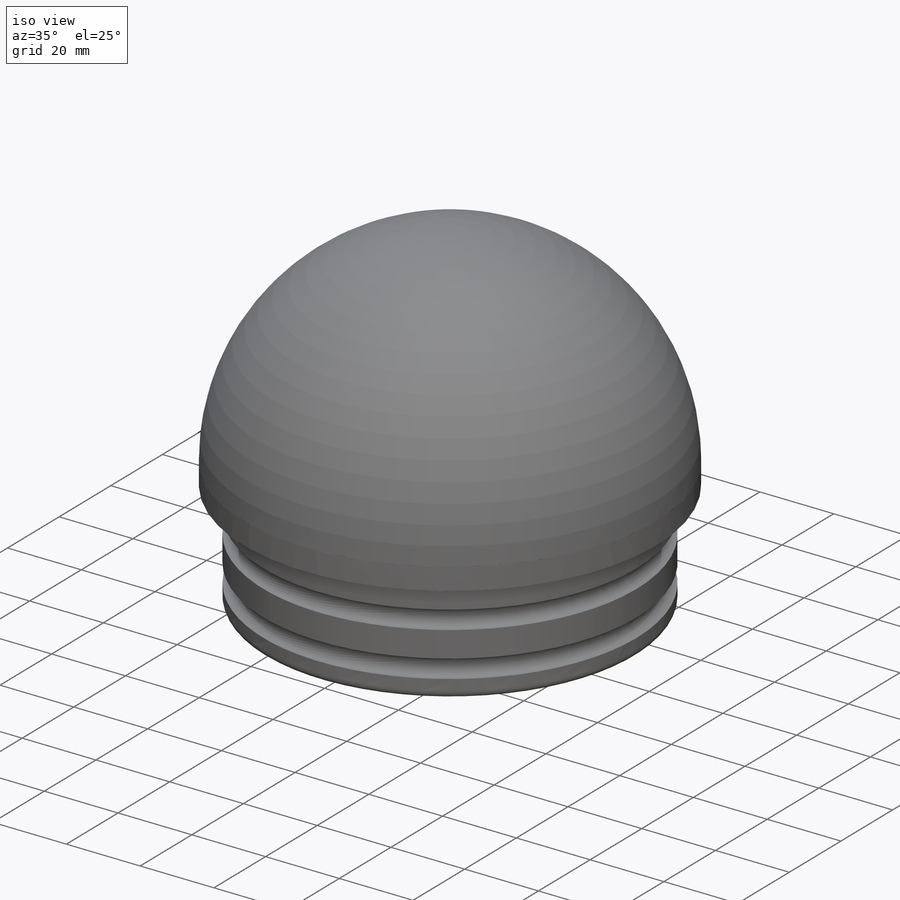
[diagram: iso view]
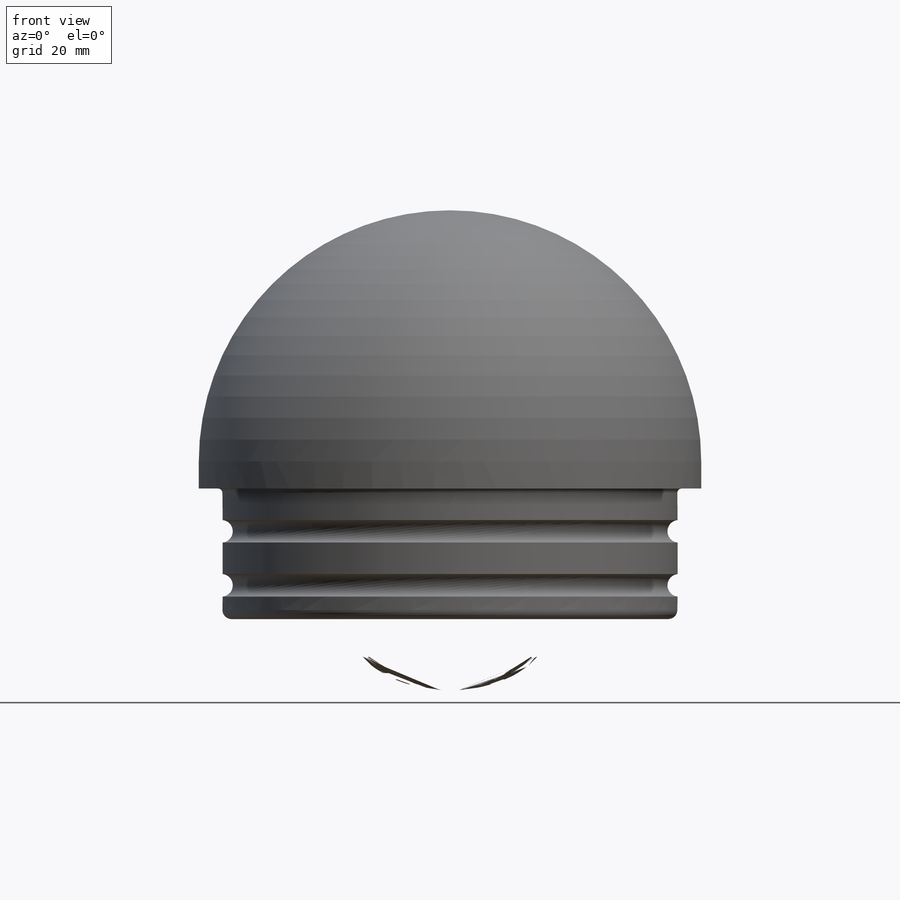
[diagram: front view]
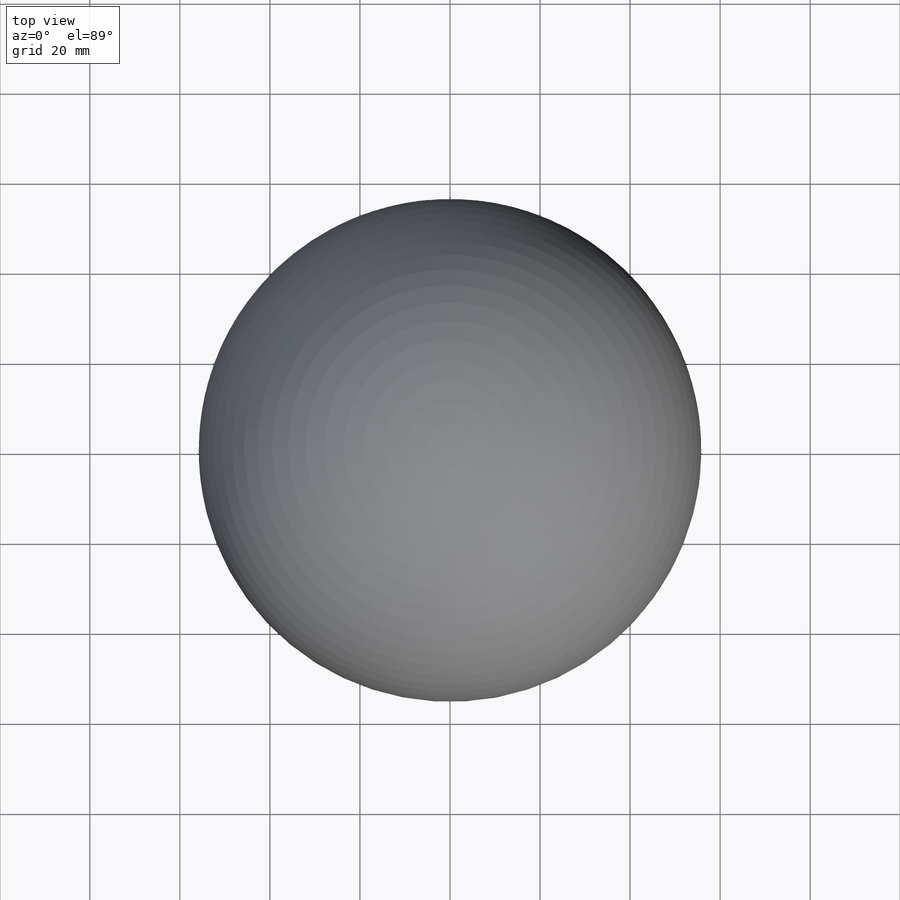
[diagram: top view]
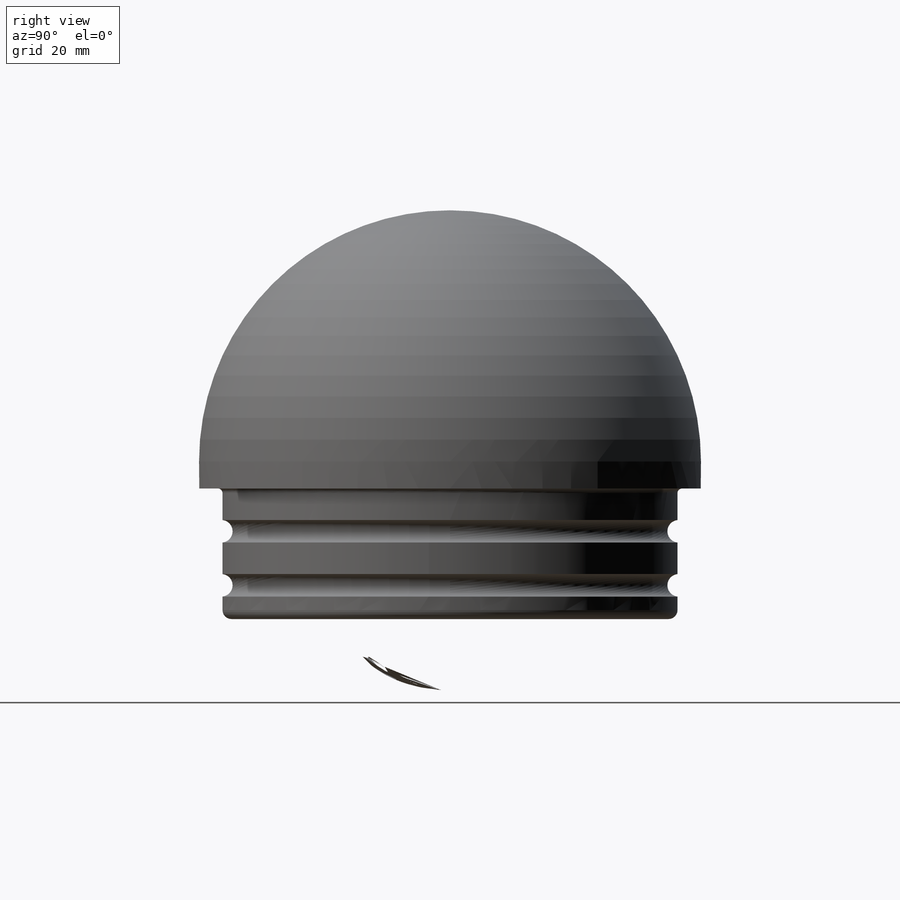
[diagram: right view]
SOLIDWORKS PART (.sldprt)
format: sldprt  version: not decoded by parser v0  size: 1,391,104 bytes
history: native  units: mm
features: fillet x10, sketch x4, revolve x3, material x1, extrude x1, pattern_circular x1 (+12 scaffold rows collapsed)
feature tree (32):
  scaffold x12  (default folders/planes/origin — collapsed)
  material  "Custom Plastic"
  sketch  "Sketch2"  dims[c1.D2=4.0mm c1.D11=4.0mm c1.D13=4.0mm c1.D14=1.8mm c1.D1=5.0mm c1.D3=5.0mm c1.D4=6.9mm c1.D5=7.0mm c1.D6=8.0mm c1.D7=5.0mm c1.D8=50.8mm c1.D9=0.25mm c1.D10=6.0mm c2.D2=2.0mm c3.D2=2.0mm c4.D2=2.0mm c5.D2=1.1mm c5.D11=2.0mm c5.D12=4.65mm c6.D11=4.6mm c6.D14=2.0mm c7.D11=3.5mm c7.D2=7.0mm c7.D5=7.0mm c7.D6=50.55mm c7.D14=5.0mm]
  revolve  "Revolve1"  Angle=360deg
  fillet  "Fillet1"  Radius=1mm
  fillet  "Fillet2"  Radius=2mm
  fillet  "Fillet3"  Radius=4.1mm
  fillet  "Fillet4"  Radius=3mm
  sketch  "Sketch3"  dims[c1.D1=2.5mm c1.D2=8.0mm c1.D4=4.0mm c1.D3=3.0mm c2.D2=~30.317008mm c3.D2=45.0deg]
  extrude  "Boss-Extrude1"  [1 undecoded]
  pattern_circular  "CirPattern1"  Count=4 Angle=360deg
  sketch  "Sketch4"  dims[c1.D1=6.0mm c1.D2=12.0mm c1.D3=6.0mm c1.D4=6.0mm c2.D2=5.0mm c2.D5=0.25mm c2.D6=~11.686169mm c3.D6=18.0deg c3.D7=~11.167636mm c4.D7=19.0deg]
  revolve  "Revolve2"  Angle=5.5deg
  fillet  "Fillet8"  Radius=8mm
  fillet  "Fillet5"  Radius=8mm
  fillet  "Fillet6"  Radius=2mm
  fillet  "Fillet10"  Radius=2mm
  fillet  "Fillet9"  Radius=3mm
  fillet  "Fillet11"  Radius=4mm
  sketch  "Sketch5"  dims[c1.D1=5.0mm c1.D2=7.0mm c2.D1=1.25mm c2.D2=5.0mm c2.D3=6.0mm]
  revolve  "Revolve3"  Angle=360deg
decode coverage: 18 of 19 modeling features carry decoded parameters
note: ~ marks probable driven/reference dimensions
note: 1 parameter value undecoded
note: suppression state not decoded; provenance and decode notes live in map.json
